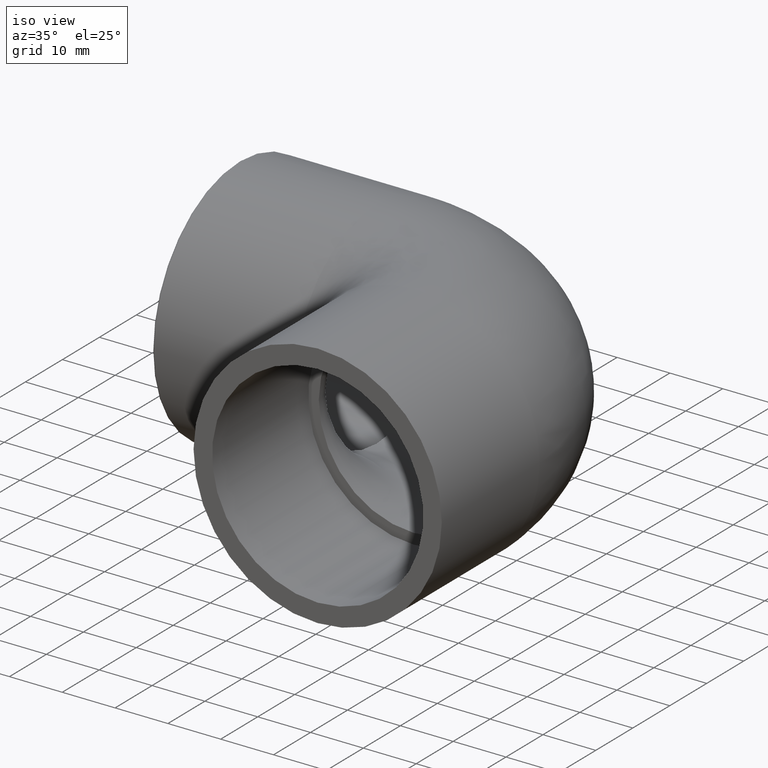
[diagram: clean part render]
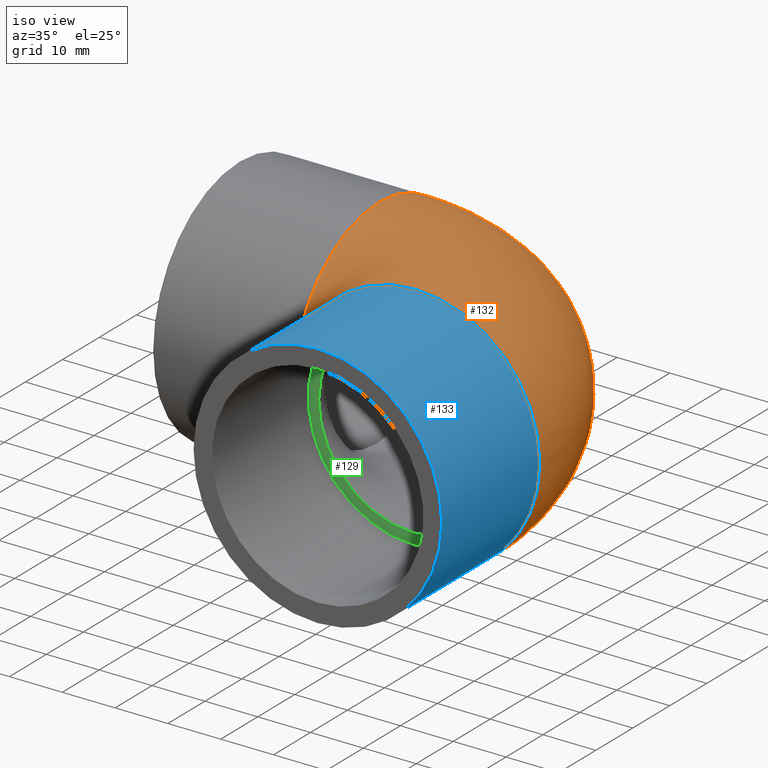
[diagram: same view with three faces highlighted in distinct colors, each labeled with its STEP entity id]
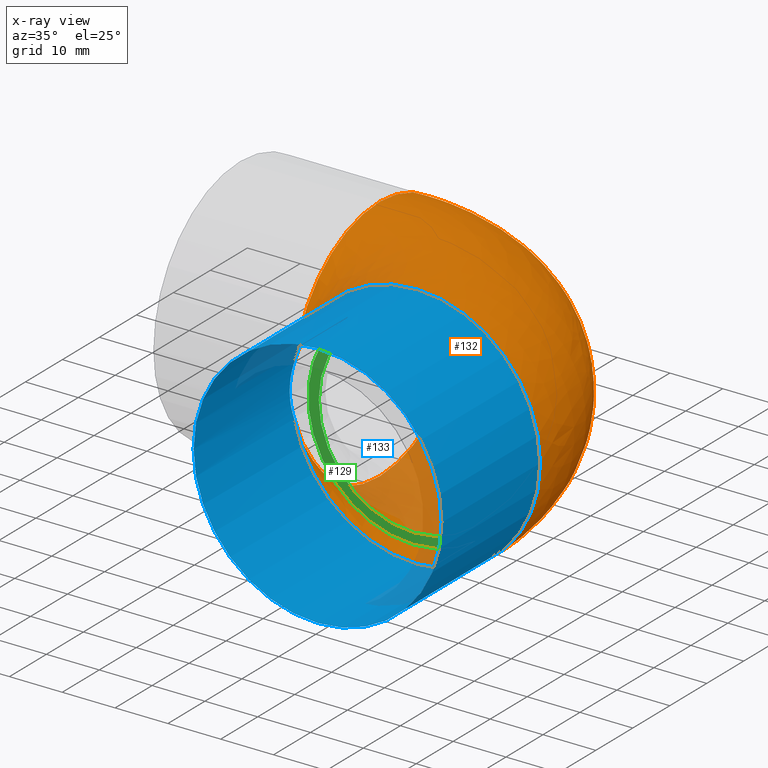
[diagram: x-ray of the same camera — body ghosted, the three highlighted faces saturated]
A machine part, iso view with three faces highlighted in distinct colors.
The next image is the same camera in x-ray (body ghosted, the three faces saturated) — at least one of them is partly hidden behind the body in this view.
Their STEP definitions:

[orange] entity #132 — the highlighted face is a freeform B-spline surface patch.
#16=(
BOUNDED_SURFACE()
B_SPLINE_SURFACE(2,2,((#226,#227,#228),(#229,#230,#231),(#232,#233,#234),
(#235,#236,#237),(#238,#239,#240),(#241,#242,#243),(#244,#245,#246),(#247,
#248,#249),(#250,#251,#252)),.UNSPECIFIED.,.F.,.F.,.F.)
B_SPLINE_SURFACE_WITH_KNOTS((3,2,2,2,3),(3,3),(-2.93494089001317,-1.46747044500658,
0.,1.46747044500658,2.93494089001317),(1.5707963267949,3.14159265358979),
 .UNSPECIFIED.)
GEOMETRIC_REPRESENTATION_ITEM()
RATIONAL_B_SPLINE_SURFACE(((1.,0.707106781186548,1.),(0.742678303381039,
0.525152864560853,0.742678303381039),(1.,0.707106781186548,1.),(0.742678303381039,
0.525152864560853,0.742678303381039),(1.,0.707106781186548,1.),(0.742678303381039,
0.525152864560853,0.742678303381039),(1.,0.707106781186548,1.),(0.742678303381039,
0.525152864560853,0.742678303381039),(1.,0.707106781186548,1.)))
REPRESENTATION_ITEM('')
SURFACE()
);
#40=FACE_OUTER_BOUND('',#56,.T.);
#56=EDGE_LOOP('',(#111,#112));
#73=CIRCLE('',#151,23.5);
#74=CIRCLE('',#152,23.5);
#84=VERTEX_POINT('',#253);
#85=VERTEX_POINT('',#254);
#95=EDGE_CURVE('',#84,#85,#73,.T.);
#96=EDGE_CURVE('',#85,#84,#74,.T.);
#111=ORIENTED_EDGE('',*,*,#95,.T.);
#112=ORIENTED_EDGE('',*,*,#96,.T.);
#132=ADVANCED_FACE('',(#40),#16,.F.);
#151=AXIS2_PLACEMENT_3D('',#255,#186,#187);
#152=AXIS2_PLACEMENT_3D('',#256,#188,#189);
#186=DIRECTION('center_axis',(1.,0.,0.));
#187=DIRECTION('ref_axis',(0.,0.,-1.));
#188=DIRECTION('center_axis',(6.12323399573677E-17,1.,0.));
#189=DIRECTION('ref_axis',(0.,0.,-1.));
#226=CARTESIAN_POINT('Ctrl Pts',(-23.,-23.,4.82182538049649));
#227=CARTESIAN_POINT('Ctrl Pts',(-23.,-23.,4.82182538049649));
#228=CARTESIAN_POINT('Ctrl Pts',(-23.,-23.,4.82182538049649));
#229=CARTESIAN_POINT('Ctrl Pts',(-23.,-18.6523201425837,25.5601617634452));
#230=CARTESIAN_POINT('Ctrl Pts',(-18.6523201425837,-18.6523201425837,25.5601617634452));
#231=CARTESIAN_POINT('Ctrl Pts',(-18.6523201425837,-23.,25.5601617634452));
#232=CARTESIAN_POINT('Ctrl Pts',(-23.,2.42383992870816,23.3746657730116));
#233=CARTESIAN_POINT('Ctrl Pts',(2.42383992870816,2.42383992870816,23.3746657730116));
#234=CARTESIAN_POINT('Ctrl Pts',(2.42383992870816,-23.,23.3746657730116));
#235=CARTESIAN_POINT('Ctrl Pts',(-23.,23.5,21.189169782578));
#236=CARTESIAN_POINT('Ctrl Pts',(23.5,23.5,21.189169782578));
#237=CARTESIAN_POINT('Ctrl Pts',(23.5,-23.,21.189169782578));
#238=CARTESIAN_POINT('Ctrl Pts',(-23.,23.5,0.));
#239=CARTESIAN_POINT('Ctrl Pts',(23.5,23.5,0.));
#240=CARTESIAN_POINT('Ctrl Pts',(23.5,-23.,0.));
#241=CARTESIAN_POINT('Ctrl Pts',(-23.,23.5,-21.189169782578));
#242=CARTESIAN_POINT('Ctrl Pts',(23.5,23.5,-21.189169782578));
#243=CARTESIAN_POINT('Ctrl Pts',(23.5,-23.,-21.189169782578));
#244=CARTESIAN_POINT('Ctrl Pts',(-23.,2.42383992870816,-23.3746657730116));
#245=CARTESIAN_POINT('Ctrl Pts',(2.42383992870816,2.42383992870816,-23.3746657730116));
#246=CARTESIAN_POINT('Ctrl Pts',(2.42383992870816,-23.,-23.3746657730116));
#247=CARTESIAN_POINT('Ctrl Pts',(-23.,-18.6523201425837,-25.5601617634452));
#248=CARTESIAN_POINT('Ctrl Pts',(-18.6523201425837,-18.6523201425837,-25.5601617634452));
#249=CARTESIAN_POINT('Ctrl Pts',(-18.6523201425837,-23.,-25.5601617634452));
#250=CARTESIAN_POINT('Ctrl Pts',(-23.,-23.,-4.82182538049649));
#251=CARTESIAN_POINT('Ctrl Pts',(-23.,-23.,-4.82182538049649));
#252=CARTESIAN_POINT('Ctrl Pts',(-23.,-23.,-4.82182538049649));
#253=CARTESIAN_POINT('',(-23.,-23.,-4.82182538049642));
#254=CARTESIAN_POINT('',(-23.,-23.,4.82182538049642));
#255=CARTESIAN_POINT('Origin',(-23.,0.,0.));
#256=CARTESIAN_POINT('Origin',(-1.40834381901946E-15,-23.,0.));

[blue] entity #133 — the highlighted cylindrical surface (bore or boss wall) has radius 23.5 mm, axis along (0, 1, 0).
#15=ELLIPSE('',#154,33.2340187157677,23.5);
#23=CYLINDRICAL_SURFACE('',#153,23.5);
#30=FACE_BOUND('',#58,.T.);
#41=FACE_OUTER_BOUND('',#57,.T.);
#57=EDGE_LOOP('',(#113,#114));
#58=EDGE_LOOP('',(#115));
#74=CIRCLE('',#152,23.5);
#75=CIRCLE('',#155,23.5);
#84=VERTEX_POINT('',#253);
#85=VERTEX_POINT('',#254);
#86=VERTEX_POINT('',#259);
#96=EDGE_CURVE('',#85,#84,#74,.T.);
#97=EDGE_CURVE('',#84,#85,#15,.T.);
#98=EDGE_CURVE('',#86,#86,#75,.T.);
#113=ORIENTED_EDGE('',*,*,#97,.F.);
#114=ORIENTED_EDGE('',*,*,#96,.F.);
#115=ORIENTED_EDGE('',*,*,#98,.T.);
#133=ADVANCED_FACE('',(#41,#30),#23,.T.);
#152=AXIS2_PLACEMENT_3D('',#256,#188,#189);
#153=AXIS2_PLACEMENT_3D('',#257,#190,#191);
#154=AXIS2_PLACEMENT_3D('',#258,#192,#193);
#155=AXIS2_PLACEMENT_3D('',#260,#194,#195);
#188=DIRECTION('center_axis',(6.12323399573677E-17,1.,0.));
#189=DIRECTION('ref_axis',(0.,0.,-1.));
#190=DIRECTION('center_axis',(6.12323399573677E-17,1.,0.));
#191=DIRECTION('ref_axis',(-1.,6.12323399573677E-17,0.));
#192=DIRECTION('center_axis',(-0.707106781186548,0.707106781186548,0.));
#193=DIRECTION('ref_axis',(-0.707106781186547,-0.707106781186547,0.));
#194=DIRECTION('center_axis',(6.12323399573677E-17,1.,0.));
#195=DIRECTION('ref_axis',(0.,0.,-1.));
#253=CARTESIAN_POINT('',(-23.,-23.,-4.82182538049642));
#254=CARTESIAN_POINT('',(-23.,-23.,4.82182538049642));
#256=CARTESIAN_POINT('Origin',(-1.40834381901946E-15,-23.,0.));
#257=CARTESIAN_POINT('Origin',(-2.21967232345458E-15,-36.25,0.));
#258=CARTESIAN_POINT('Origin',(0.,0.,0.));
#259=CARTESIAN_POINT('',(-23.5,-49.5,0.));
#260=CARTESIAN_POINT('Origin',(-3.0310008278897E-15,-49.5,0.));

[green] entity #129 — the highlighted planar face has unit normal (0, 1, 0).
#17=PLANE('',#146);
#27=FACE_BOUND('',#51,.T.);
#37=FACE_OUTER_BOUND('',#50,.T.);
#50=EDGE_LOOP('',(#105));
#51=EDGE_LOOP('',(#106));
#67=CIRCLE('',#141,18.);
#69=CIRCLE('',#144,20.);
#78=VERTEX_POINT('',#210);
#80=VERTEX_POINT('',#215);
#89=EDGE_CURVE('',#78,#78,#67,.T.);
#91=EDGE_CURVE('',#80,#80,#69,.T.);
#105=ORIENTED_EDGE('',*,*,#91,.F.);
#106=ORIENTED_EDGE('',*,*,#89,.T.);
#129=ADVANCED_FACE('',(#37,#27),#17,.F.);
#141=AXIS2_PLACEMENT_3D('',#211,#166,#167);
#144=AXIS2_PLACEMENT_3D('',#216,#172,#173);
#146=AXIS2_PLACEMENT_3D('',#219,#176,#177);
#166=DIRECTION('center_axis',(6.12323399573677E-17,1.,0.));
#167=DIRECTION('ref_axis',(1.,-6.12323399573677E-17,0.));
#172=DIRECTION('center_axis',(6.12323399573677E-17,1.,0.));
#173=DIRECTION('ref_axis',(0.,0.,-1.));
#176=DIRECTION('center_axis',(6.12323399573677E-17,1.,0.));
#177=DIRECTION('ref_axis',(0.,0.,-1.));
#210=CARTESIAN_POINT('',(2.22044604925031E-15,-23.5,18.));
#211=CARTESIAN_POINT('Origin',(0.,-23.5,0.));
#215=CARTESIAN_POINT('',(-3.88825358729285E-15,-23.5,20.));
#216=CARTESIAN_POINT('Origin',(-1.43895998899814E-15,-23.5,0.));
#219=CARTESIAN_POINT('Origin',(-1.80903433053986E-15,-23.5,-9.4425648294133E-16));